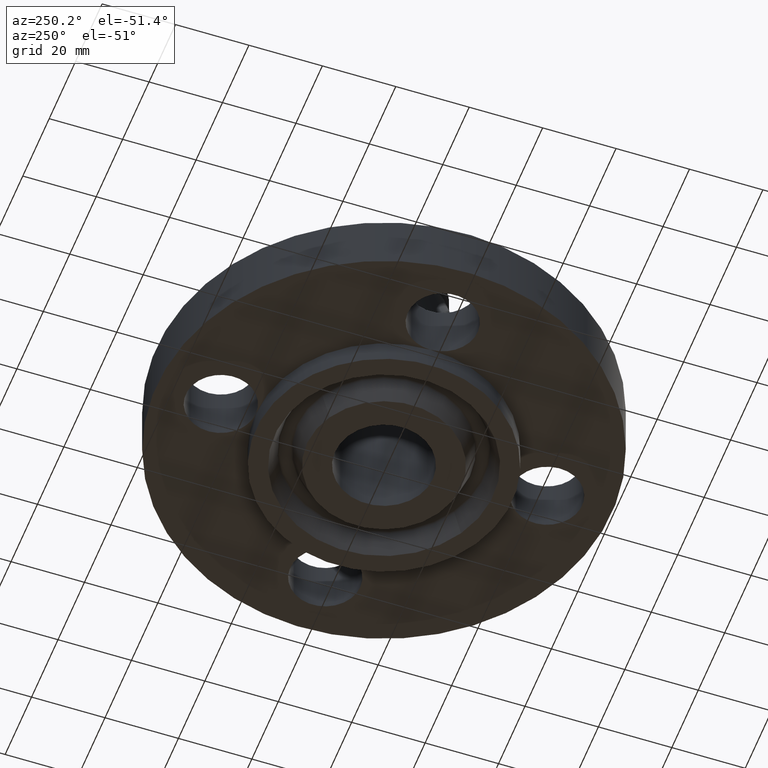
[diagram: clean part render]
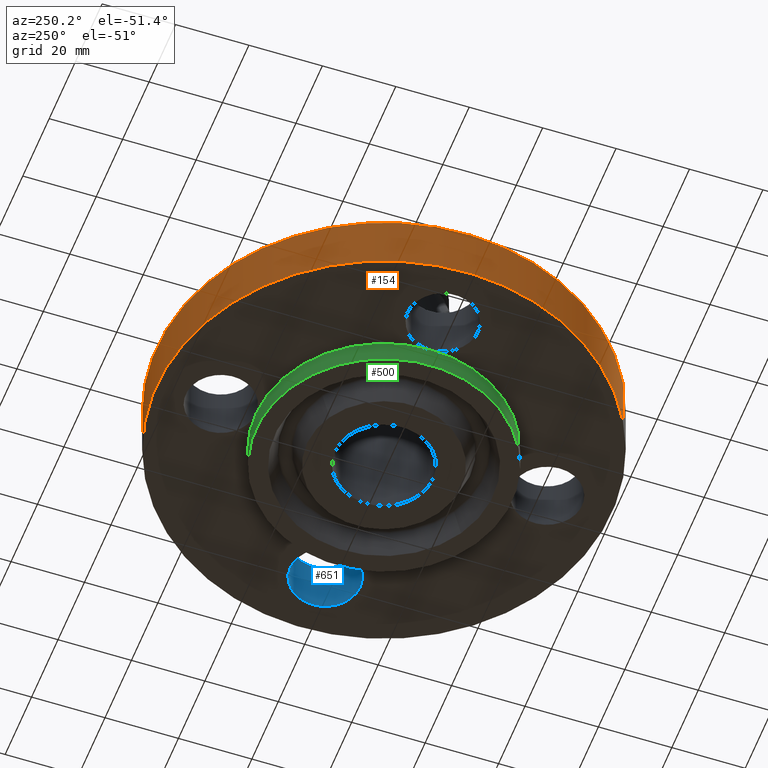
[diagram: same view with three faces highlighted in distinct colors, each labeled with its STEP entity id]
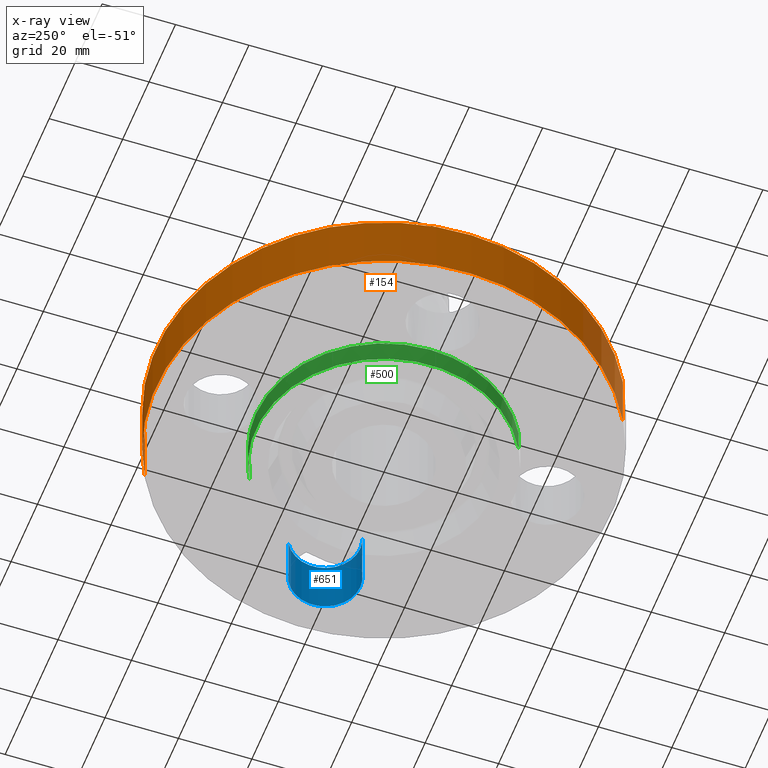
[diagram: x-ray of the same camera — body ghosted, the three highlighted faces saturated]
A machine part, auxiliary view with three faces highlighted in distinct colors.
The next image is the same camera in x-ray (body ghosted, the three faces saturated) — at least one of them is partly hidden behind the body in this view.
Their STEP definitions:

[orange] entity #154 — the highlighted cylindrical surface (partial cylindrical patch) has radius 61.976 mm, axis along (0, 0, -1).
#118=AXIS2_PLACEMENT_3D('Cylinder Axis2P3D',#115,#116,#117) ;
#122=AXIS2_PLACEMENT_3D('Circle Axis2P3D',#120,#121,$) ;
#138=AXIS2_PLACEMENT_3D('Circle Axis2P3D',#136,#137,$) ;
#115=CARTESIAN_POINT('Axis2P3D Location',(0.,0.,1.065)) ;
#120=CARTESIAN_POINT('Axis2P3D Location',(0.,0.,1.39870617276E-016)) ;
#124=CARTESIAN_POINT('Vertex',(-1.1697983142,-2.14130145102,2.79741234551E-016)) ;
#126=CARTESIAN_POINT('Vertex',(1.1697983142,2.14130145102,2.79741234551E-016)) ;
#129=CARTESIAN_POINT('Line Origine',(-1.1697983142,-2.14130145102,0.310000000001)) ;
#133=CARTESIAN_POINT('Vertex',(-1.1697983142,-2.14130145102,0.620000000002)) ;
#136=CARTESIAN_POINT('Axis2P3D Location',(0.,0.,0.620000000002)) ;
#140=CARTESIAN_POINT('Vertex',(1.1697983142,2.14130145102,0.620000000002)) ;
#143=CARTESIAN_POINT('Line Origine',(1.1697983142,2.14130145102,0.310000000001)) ;
#116=DIRECTION('Axis2P3D Direction',(0.,0.,-0.0393700787402)) ;
#117=DIRECTION('Axis2P3D XDirection',(0.0188750212049,0.0345504945626,0.)) ;
#121=DIRECTION('Axis2P3D Direction',(0.,0.,-0.0393700787402)) ;
#130=DIRECTION('Vector Direction',(0.,0.,-0.0393700787402)) ;
#137=DIRECTION('Axis2P3D Direction',(0.,0.,-0.0393700787402)) ;
#144=DIRECTION('Vector Direction',(0.,0.,-0.0393700787402)) ;
#131=VECTOR('Line Direction',#130,0.0393700787402) ;
#145=VECTOR('Line Direction',#144,0.0393700787402) ;
#149=ORIENTED_EDGE('',*,*,#128,.F.) ;
#150=ORIENTED_EDGE('',*,*,#135,.T.) ;
#151=ORIENTED_EDGE('',*,*,#142,.T.) ;
#152=ORIENTED_EDGE('',*,*,#147,.F.) ;
#154=ADVANCED_FACE('PartBody',(#153),#119,.T.) ;
#123=CIRCLE('generated circle',#122,2.44000000001) ;
#139=CIRCLE('generated circle',#138,2.44000000001) ;
#119=CYLINDRICAL_SURFACE('generated cylinder',#118,2.44000000001) ;
#128=EDGE_CURVE('',#125,#127,#123,.T.) ;
#135=EDGE_CURVE('',#125,#134,#132,.F.) ;
#142=EDGE_CURVE('',#134,#141,#139,.T.) ;
#147=EDGE_CURVE('',#127,#141,#146,.F.) ;
#148=EDGE_LOOP('',(#149,#150,#151,#152)) ;
#153=FACE_OUTER_BOUND('',#148,.T.) ;
#132=LINE('Line',#129,#131) ;
#146=LINE('Line',#143,#145) ;
#125=VERTEX_POINT('',#124) ;
#127=VERTEX_POINT('',#126) ;
#134=VERTEX_POINT('',#133) ;
#141=VERTEX_POINT('',#140) ;

[blue] entity #651 — the highlighted cylindrical surface (partial cylindrical patch) has radius 9.525 mm, axis along (0, -0, -1).
#571=AXIS2_PLACEMENT_3D('Circle Axis2P3D',#569,#570,$) ;
#624=AXIS2_PLACEMENT_3D('Cylinder Axis2P3D',#621,#622,#623) ;
#642=AXIS2_PLACEMENT_3D('Circle Axis2P3D',#640,#641,$) ;
#566=CARTESIAN_POINT('Vertex',(1.57021542303,-0.32909346071,0.)) ;
#569=CARTESIAN_POINT('Axis2P3D Location',(1.75000000001,-2.79741234551E-016,0.)) ;
#573=CARTESIAN_POINT('Vertex',(1.92978457698,0.32909346071,0.)) ;
#621=CARTESIAN_POINT('Axis2P3D Location',(1.75000000001,-1.72584639625E-016,0.616062992128)) ;
#626=CARTESIAN_POINT('Line Origine',(1.92978457698,0.32909346071,0.310000000001)) ;
#630=CARTESIAN_POINT('Vertex',(1.92978457698,0.32909346071,0.620000000002)) ;
#633=CARTESIAN_POINT('Line Origine',(1.57021542303,-0.32909346071,0.310000000001)) ;
#637=CARTESIAN_POINT('Vertex',(1.57021542303,-0.32909346071,0.620000000002)) ;
#640=CARTESIAN_POINT('Axis2P3D Location',(1.75000000001,-1.72584639625E-016,0.620000000002)) ;
#570=DIRECTION('Axis2P3D Direction',(0.,0.,-0.0393700787402)) ;
#622=DIRECTION('Axis2P3D Direction',(0.,-0.,-0.0393700787402)) ;
#623=DIRECTION('Axis2P3D XDirection',(-0.0188750212049,-0.0345504945626,0.)) ;
#627=DIRECTION('Vector Direction',(0.,0.,-0.0393700787402)) ;
#634=DIRECTION('Vector Direction',(0.,0.,-0.0393700787402)) ;
#641=DIRECTION('Axis2P3D Direction',(0.,-0.,-0.0393700787402)) ;
#628=VECTOR('Line Direction',#627,0.0393700787402) ;
#635=VECTOR('Line Direction',#634,0.0393700787402) ;
#646=ORIENTED_EDGE('',*,*,#632,.F.) ;
#647=ORIENTED_EDGE('',*,*,#575,.T.) ;
#648=ORIENTED_EDGE('',*,*,#639,.T.) ;
#649=ORIENTED_EDGE('',*,*,#644,.F.) ;
#651=ADVANCED_FACE('PartBody',(#650),#625,.F.) ;
#572=CIRCLE('generated circle',#571,0.375000000001) ;
#643=CIRCLE('generated circle',#642,0.375000000001) ;
#625=CYLINDRICAL_SURFACE('generated cylinder',#624,0.375000000001) ;
#575=EDGE_CURVE('',#574,#567,#572,.T.) ;
#632=EDGE_CURVE('',#574,#631,#629,.F.) ;
#639=EDGE_CURVE('',#567,#638,#636,.F.) ;
#644=EDGE_CURVE('',#631,#638,#643,.T.) ;
#645=EDGE_LOOP('',(#646,#647,#648,#649)) ;
#650=FACE_OUTER_BOUND('',#645,.T.) ;
#629=LINE('Line',#626,#628) ;
#636=LINE('Line',#633,#635) ;
#567=VERTEX_POINT('',#566) ;
#574=VERTEX_POINT('',#573) ;
#631=VERTEX_POINT('',#630) ;
#638=VERTEX_POINT('',#637) ;

[green] entity #500 — the highlighted cylindrical surface (partial cylindrical patch) has radius 34.925 mm, axis along (0, 0, -1).
#450=AXIS2_PLACEMENT_3D('Cylinder Axis2P3D',#447,#448,#449) ;
#454=AXIS2_PLACEMENT_3D('Circle Axis2P3D',#452,#453,$) ;
#470=AXIS2_PLACEMENT_3D('Circle Axis2P3D',#468,#469,$) ;
#477=AXIS2_PLACEMENT_3D('Circle Axis2P3D',#475,#476,$) ;
#482=AXIS2_PLACEMENT_3D('Circle Axis2P3D',#480,#481,$) ;
#87=CARTESIAN_POINT('Vertex',(-5.47434258046E-015,1.37500000001,1.39870617276E-016)) ;
#447=CARTESIAN_POINT('Axis2P3D Location',(0.,0.,1.065)) ;
#452=CARTESIAN_POINT('Axis2P3D Location',(0.,0.,-0.250000000001)) ;
#456=CARTESIAN_POINT('Vertex',(-0.659210115583,-1.2066760226,-0.250000000001)) ;
#458=CARTESIAN_POINT('Vertex',(0.659210115583,1.2066760226,-0.250000000001)) ;
#461=CARTESIAN_POINT('Line Origine',(-0.659210115583,-1.2066760226,-0.125)) ;
#465=CARTESIAN_POINT('Vertex',(-0.659210115583,-1.2066760226,1.39870617276E-016)) ;
#468=CARTESIAN_POINT('Axis2P3D Location',(0.,0.,1.39870617276E-016)) ;
#472=CARTESIAN_POINT('Vertex',(-1.37500000001,-2.79741234551E-016,0.)) ;
#475=CARTESIAN_POINT('Axis2P3D Location',(0.,0.,1.39870617276E-016)) ;
#480=CARTESIAN_POINT('Axis2P3D Location',(0.,0.,1.39870617276E-016)) ;
#484=CARTESIAN_POINT('Vertex',(0.659210115583,1.2066760226,1.39870617276E-016)) ;
#487=CARTESIAN_POINT('Line Origine',(0.659210115583,1.2066760226,-0.125)) ;
#448=DIRECTION('Axis2P3D Direction',(0.,0.,-0.0393700787402)) ;
#449=DIRECTION('Axis2P3D XDirection',(0.0188750212049,0.0345504945626,0.)) ;
#453=DIRECTION('Axis2P3D Direction',(0.,0.,-0.0393700787402)) ;
#462=DIRECTION('Vector Direction',(0.,0.,-0.0393700787402)) ;
#469=DIRECTION('Axis2P3D Direction',(0.,0.,-0.0393700787402)) ;
#476=DIRECTION('Axis2P3D Direction',(0.,0.,-0.0393700787402)) ;
#481=DIRECTION('Axis2P3D Direction',(0.,0.,-0.0393700787402)) ;
#488=DIRECTION('Vector Direction',(0.,0.,-0.0393700787402)) ;
#463=VECTOR('Line Direction',#462,0.0393700787402) ;
#489=VECTOR('Line Direction',#488,0.0393700787402) ;
#493=ORIENTED_EDGE('',*,*,#460,.F.) ;
#494=ORIENTED_EDGE('',*,*,#467,.T.) ;
#495=ORIENTED_EDGE('',*,*,#474,.T.) ;
#496=ORIENTED_EDGE('',*,*,#479,.T.) ;
#497=ORIENTED_EDGE('',*,*,#486,.T.) ;
#498=ORIENTED_EDGE('',*,*,#491,.F.) ;
#500=ADVANCED_FACE('PartBody',(#499),#451,.T.) ;
#455=CIRCLE('generated circle',#454,1.37500000001) ;
#471=CIRCLE('generated circle',#470,1.37500000001) ;
#478=CIRCLE('generated circle',#477,1.37500000001) ;
#483=CIRCLE('generated circle',#482,1.37500000001) ;
#451=CYLINDRICAL_SURFACE('generated cylinder',#450,1.37500000001) ;
#460=EDGE_CURVE('',#457,#459,#455,.T.) ;
#467=EDGE_CURVE('',#457,#466,#464,.F.) ;
#474=EDGE_CURVE('',#466,#473,#471,.T.) ;
#479=EDGE_CURVE('',#473,#88,#478,.T.) ;
#486=EDGE_CURVE('',#88,#485,#483,.T.) ;
#491=EDGE_CURVE('',#459,#485,#490,.F.) ;
#492=EDGE_LOOP('',(#493,#494,#495,#496,#497,#498)) ;
#499=FACE_OUTER_BOUND('',#492,.T.) ;
#464=LINE('Line',#461,#463) ;
#490=LINE('Line',#487,#489) ;
#88=VERTEX_POINT('',#87) ;
#457=VERTEX_POINT('',#456) ;
#459=VERTEX_POINT('',#458) ;
#466=VERTEX_POINT('',#465) ;
#473=VERTEX_POINT('',#472) ;
#485=VERTEX_POINT('',#484) ;